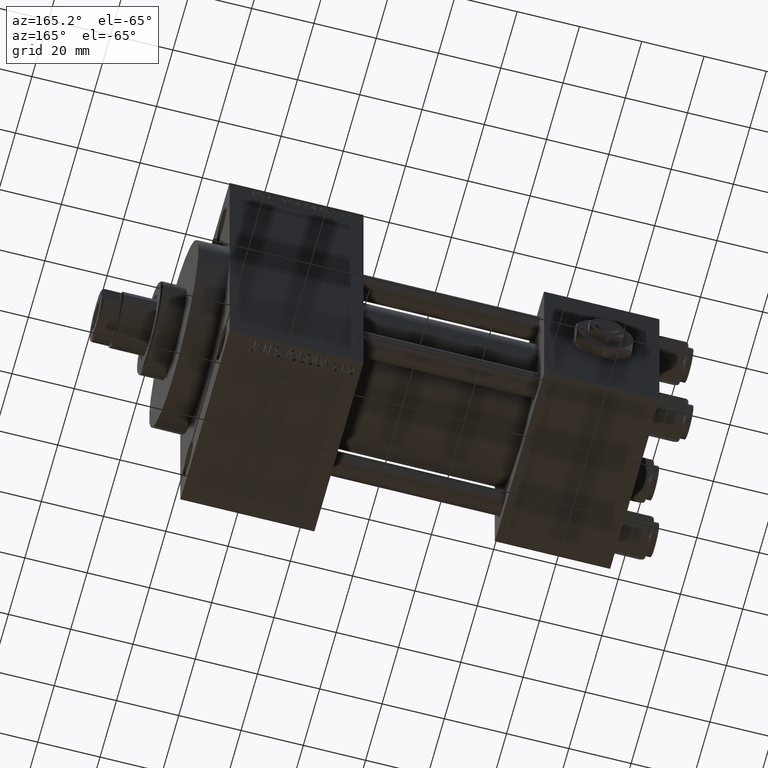
[diagram: clean part render]
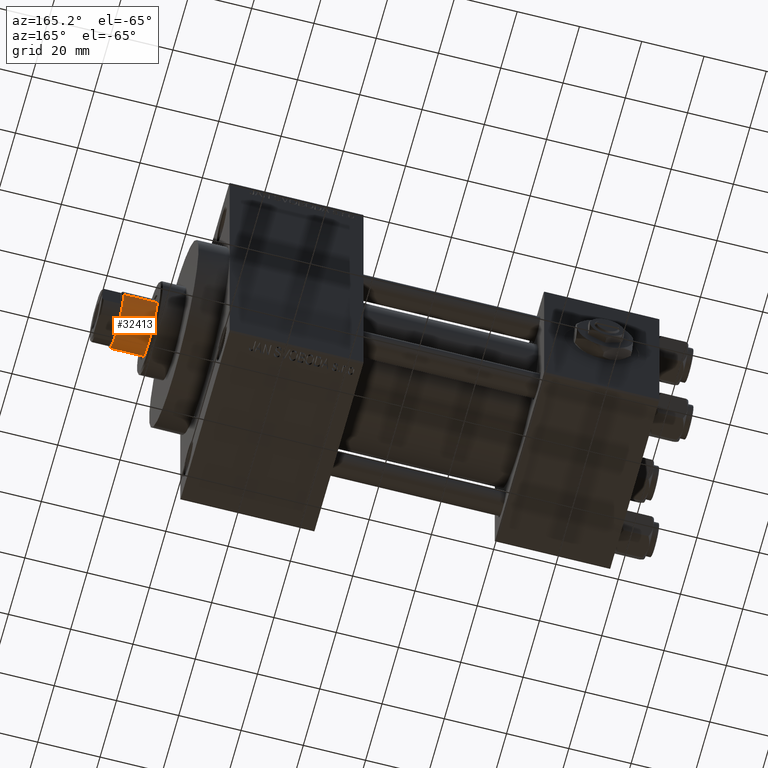
[diagram: same view with one face highlighted and labeled with its STEP entity id]
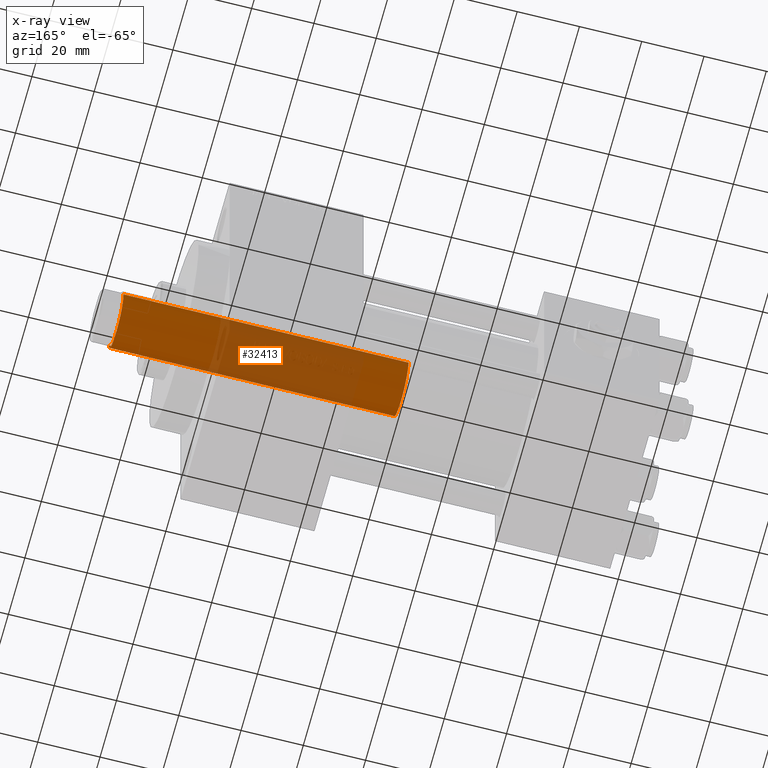
[diagram: x-ray of the same camera — body ghosted, the highlighted face saturated]
A machine part, auxiliary view. The second image highlights one B-rep face of the part: STEP entity #32413.
The next image is the same camera in x-ray: the body ghosted, the highlighted face saturated — about 52% of this face is hidden behind the body in this view.
In plain terms, the highlighted cylindrical surface (edge-blend (fillet) strip) has radius 9 mm, axis along (-1, 0, 0).
Its self-contained STEP definition (entity closure, byte-faithful):
#792 = CARTESIAN_POINT ( 'NONE',  ( 0.000000000000000000, 0.000000000000000000, 130.0000000000000000 ) ) ;
#2256 = DIRECTION ( 'NONE',  ( 0.000000000000000000, 0.000000000000000000, -1.000000000000000000 ) ) ;
#3310 = EDGE_LOOP ( 'NONE', ( #48663, #19537, #4318, #27230 ) ) ;
#4318 = ORIENTED_EDGE ( 'NONE', *, *, #40114, .T. ) ;
#4897 = EDGE_CURVE ( 'NONE', #38740, #47155, #32706, .T. ) ;
#6947 = CARTESIAN_POINT ( 'NONE',  ( -9.000000000000000000, 0.000000000000000000, 129.5000000000000000 ) ) ;
#7262 = CIRCLE ( 'NONE', #20626, 9.000000000000000000 ) ;
#7784 = AXIS2_PLACEMENT_3D ( 'NONE', #792, #23440, #12597 ) ;
#10028 = DIRECTION ( 'NONE',  ( -0.000000000000000000, -0.000000000000000000, -1.000000000000000000 ) ) ;
#10322 = CARTESIAN_POINT ( 'NONE',  ( 9.000000000000000000, 1.102182119232617714E-15, 38.00000000000000000 ) ) ;
#10416 = CARTESIAN_POINT ( 'NONE',  ( 9.000000000000000000, 1.102182119232617714E-15, 129.5000000000000000 ) ) ;
#12597 = DIRECTION ( 'NONE',  ( -1.000000000000000000, 0.000000000000000000, 0.000000000000000000 ) ) ;
#13049 = EDGE_CURVE ( 'NONE', #41655, #38740, #19322, .T. ) ;
#13327 = DIRECTION ( 'NONE',  ( 1.000000000000000000, 0.000000000000000000, 0.000000000000000000 ) ) ;
#19322 = CIRCLE ( 'NONE', #46866, 9.000000000000000000 ) ;
#19537 = ORIENTED_EDGE ( 'NONE', *, *, #4897, .T. ) ;
#19973 = VERTEX_POINT ( 'NONE', #35091 ) ;
#20626 = AXIS2_PLACEMENT_3D ( 'NONE', #22911, #23879, #23648 ) ;
#22911 = CARTESIAN_POINT ( 'NONE',  ( 0.000000000000000000, 0.000000000000000000, 38.00000000000000000 ) ) ;
#23440 = DIRECTION ( 'NONE',  ( -0.000000000000000000, -0.000000000000000000, -1.000000000000000000 ) ) ;
#23648 = DIRECTION ( 'NONE',  ( 1.000000000000000000, 0.000000000000000000, 0.000000000000000000 ) ) ;
#23879 = DIRECTION ( 'NONE',  ( 0.000000000000000000, 0.000000000000000000, 1.000000000000000000 ) ) ;
#27230 = ORIENTED_EDGE ( 'NONE', *, *, #48589, .F. ) ;
#28029 = CARTESIAN_POINT ( 'NONE',  ( -9.000000000000000000, 0.000000000000000000, 130.0000000000000000 ) ) ;
#31239 = DIRECTION ( 'NONE',  ( -0.000000000000000000, -0.000000000000000000, -1.000000000000000000 ) ) ;
#32130 = VECTOR ( 'NONE', #10028, 1000.000000000000000 ) ;
#32413 = ADVANCED_FACE ( 'NONE', ( #34541 ), #46345, .T. ) ;
#32706 = LINE ( 'NONE', #32953, #32130 ) ;
#32953 = CARTESIAN_POINT ( 'NONE',  ( 9.000000000000000000, 1.102182119232617714E-15, 130.0000000000000000 ) ) ;
#34541 = FACE_OUTER_BOUND ( 'NONE', #3310, .T. ) ;
#35091 = CARTESIAN_POINT ( 'NONE',  ( -9.000000000000000000, 0.000000000000000000, 38.00000000000000000 ) ) ;
#35986 = CARTESIAN_POINT ( 'NONE',  ( 0.000000000000000000, 0.000000000000000000, 129.5000000000000000 ) ) ;
#38740 = VERTEX_POINT ( 'NONE', #10416 ) ;
#40114 = EDGE_CURVE ( 'NONE', #47155, #19973, #7262, .T. ) ;
#41655 = VERTEX_POINT ( 'NONE', #6947 ) ;
#46345 = CYLINDRICAL_SURFACE ( 'NONE', #7784, 9.000000000000000000 ) ;
#46775 = VECTOR ( 'NONE', #31239, 1000.000000000000000 ) ;
#46866 = AXIS2_PLACEMENT_3D ( 'NONE', #35986, #2256, #13327 ) ;
#46981 = LINE ( 'NONE', #28029, #46775 ) ;
#47155 = VERTEX_POINT ( 'NONE', #10322 ) ;
#48589 = EDGE_CURVE ( 'NONE', #41655, #19973, #46981, .T. ) ;
#48663 = ORIENTED_EDGE ( 'NONE', *, *, #13049, .T. ) ;